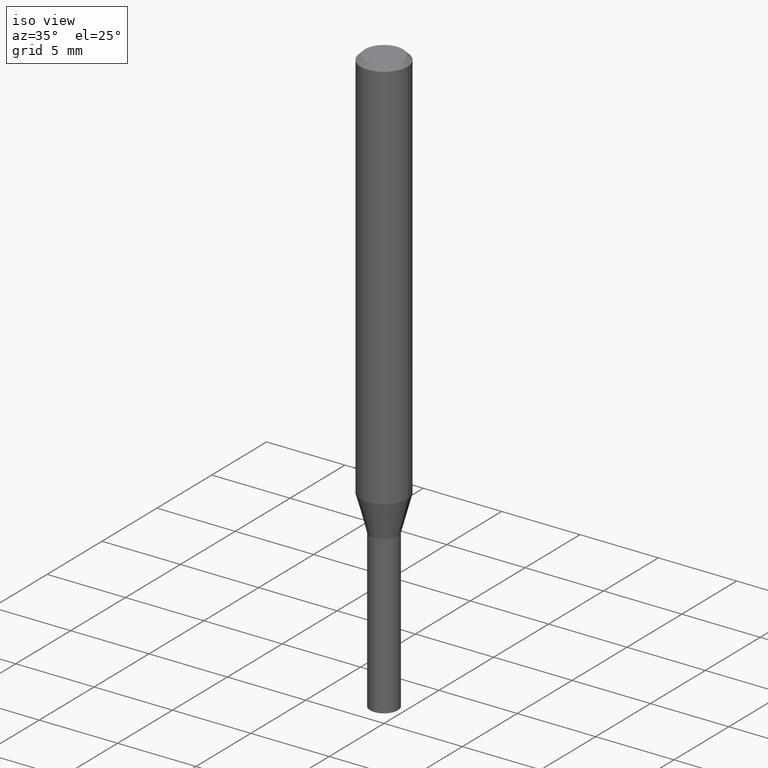
[diagram: clean part render]
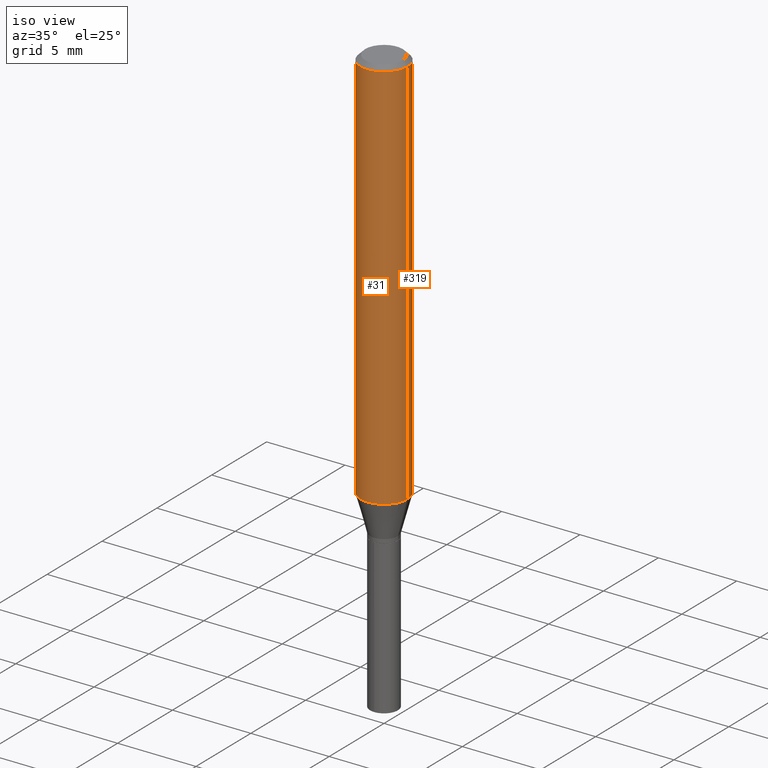
[diagram: same view with one multi-face feature highlighted, each face labeled with its STEP entity id]
A machine part, iso view. The highlighted faces form ONE feature: a constant-radius fillet chain: 2 tangent blend faces with common blend radius 1.4999 mm. The faces share edges in the B-rep.
Their STEP definitions:
[1] entity #31 (Cylinder):
#23 = DIRECTION ( 'NONE',  ( -2.445468806185136597E-29, 3.491481338843145583E-15, 1.000000000000000000 ) ) ;
#31 = ADVANCED_FACE ( 'NONE', ( #373 ), #297, .T. ) ;
#46 = CARTESIAN_POINT ( 'NONE',  ( 0.05905000000000006077, -4.123439461173744764E-16, 2.879382386107503023E-30 ) ) ;
#47 = VECTOR ( 'NONE', #242, 39.37007874015748143 ) ;
#50 = EDGE_CURVE ( 'NONE', #311, #342, #156, .T. ) ;
#53 = VERTEX_POINT ( 'NONE', #420 ) ;
#76 = DIRECTION ( 'NONE',  ( 1.000000000000000000, -6.982962677686266711E-15, 0.000000000000000000 ) ) ;
#89 = AXIS2_PLACEMENT_3D ( 'NONE', #255, #412, #76 ) ;
#97 = EDGE_CURVE ( 'NONE', #308, #342, #424, .T. ) ;
#105 = CARTESIAN_POINT ( 'NONE',  ( 0.05904999999999999832, -4.535783407291118600E-16, -0.01181000000000007218 ) ) ;
#119 = ORIENTED_EDGE ( 'NONE', *, *, #50, .T. ) ;
#126 = ORIENTED_EDGE ( 'NONE', *, *, #97, .F. ) ;
#156 = LINE ( 'NONE', #46, #187 ) ;
#158 = EDGE_CURVE ( 'NONE', #53, #308, #300, .T. ) ;
#178 = EDGE_LOOP ( 'NONE', ( #475, #334, #119, #126 ) ) ;
#187 = VECTOR ( 'NONE', #462, 39.37007874015748143 ) ;
#199 = DIRECTION ( 'NONE',  ( 1.000000000000000000, -6.982962677686266711E-15, 4.876176775795935793E-29 ) ) ;
#242 = DIRECTION ( 'NONE',  ( -2.445468806185136877E-29, 3.491481338843145188E-15, 1.000000000000000000 ) ) ;
#255 = CARTESIAN_POINT ( 'NONE',  ( 2.430024131145899834E-29, -3.469430436150130776E-15, -0.9936843704568328883 ) ) ;
#269 = DIRECTION ( 'NONE',  ( 1.000000000000000000, -6.982962677686266711E-15, 0.000000000000000000 ) ) ;
#274 = CARTESIAN_POINT ( 'NONE',  ( -0.05904999999999999832, -1.335756929914593970E-15, -0.01181000000000007218 ) ) ;
#284 = CIRCLE ( 'NONE', #89, 0.05905000000000011628 ) ;
#297 = CYLINDRICAL_SURFACE ( 'NONE', #398, 0.05905000000000006077 ) ;
#298 = CARTESIAN_POINT ( 'NONE',  ( 2.888098660104664204E-31, -4.123439461173780263E-17, -0.01181000000000007218 ) ) ;
#300 = LINE ( 'NONE', #480, #47 ) ;
#308 = VERTEX_POINT ( 'NONE', #274 ) ;
#311 = VERTEX_POINT ( 'NONE', #352 ) ;
#334 = ORIENTED_EDGE ( 'NONE', *, *, #410, .T. ) ;
#342 = VERTEX_POINT ( 'NONE', #105 ) ;
#352 = CARTESIAN_POINT ( 'NONE',  ( 0.05905000000000011628, -3.881774382267505696E-15, -0.9936843704568328883 ) ) ;
#363 = AXIS2_PLACEMENT_3D ( 'NONE', #298, #23, #269 ) ;
#373 = FACE_OUTER_BOUND ( 'NONE', #178, .T. ) ;
#398 = AXIS2_PLACEMENT_3D ( 'NONE', #467, #460, #199 ) ;
#410 = EDGE_CURVE ( 'NONE', #53, #311, #284, .T. ) ;
#412 = DIRECTION ( 'NONE',  ( -2.445468806185136597E-29, 3.491481338843145583E-15, 1.000000000000000000 ) ) ;
#420 = CARTESIAN_POINT ( 'NONE',  ( -0.05905000000000011628, -3.049854950683790888E-15, -0.9936843704568328883 ) ) ;
#424 = CIRCLE ( 'NONE', #363, 0.05904999999999999832 ) ;
#460 = DIRECTION ( 'NONE',  ( -2.445468806185136597E-29, 3.491481338843145583E-15, 1.000000000000000000 ) ) ;
#462 = DIRECTION ( 'NONE',  ( -2.445468806185136877E-29, 3.491481338843145188E-15, 1.000000000000000000 ) ) ;
#467 = CARTESIAN_POINT ( 'NONE',  ( 0.000000000000000000, 0.000000000000000000, 0.000000000000000000 ) ) ;
#475 = ORIENTED_EDGE ( 'NONE', *, *, #158, .F. ) ;
#480 = CARTESIAN_POINT ( 'NONE',  ( -0.05905000000000006077, 4.195754854663395916E-16, -2.904631170795524694E-30 ) ) ;
[2] entity #319 (Cylinder):
#46 = CARTESIAN_POINT ( 'NONE',  ( 0.05905000000000006077, -4.123439461173744764E-16, 2.879382386107503023E-30 ) ) ;
#47 = VECTOR ( 'NONE', #242, 39.37007874015748143 ) ;
#50 = EDGE_CURVE ( 'NONE', #311, #342, #156, .T. ) ;
#53 = VERTEX_POINT ( 'NONE', #420 ) ;
#55 = CIRCLE ( 'NONE', #127, 0.05904999999999999832 ) ;
#100 = CYLINDRICAL_SURFACE ( 'NONE', #346, 0.05905000000000006077 ) ;
#105 = CARTESIAN_POINT ( 'NONE',  ( 0.05904999999999999832, -4.535783407291118600E-16, -0.01181000000000007218 ) ) ;
#120 = CIRCLE ( 'NONE', #463, 0.05905000000000011628 ) ;
#125 = ORIENTED_EDGE ( 'NONE', *, *, #158, .T. ) ;
#127 = AXIS2_PLACEMENT_3D ( 'NONE', #135, #469, #170 ) ;
#135 = CARTESIAN_POINT ( 'NONE',  ( 2.888098660104664204E-31, -4.123439461173780263E-17, -0.01181000000000007218 ) ) ;
#140 = EDGE_CURVE ( 'NONE', #342, #308, #55, .T. ) ;
#143 = DIRECTION ( 'NONE',  ( -2.445468806185136597E-29, 3.491481338843145583E-15, 1.000000000000000000 ) ) ;
#156 = LINE ( 'NONE', #46, #187 ) ;
#158 = EDGE_CURVE ( 'NONE', #53, #308, #300, .T. ) ;
#170 = DIRECTION ( 'NONE',  ( 1.000000000000000000, -6.982962677686266711E-15, 0.000000000000000000 ) ) ;
#179 = FACE_OUTER_BOUND ( 'NONE', #231, .T. ) ;
#187 = VECTOR ( 'NONE', #462, 39.37007874015748143 ) ;
#231 = EDGE_LOOP ( 'NONE', ( #385, #125, #258, #350 ) ) ;
#237 = EDGE_CURVE ( 'NONE', #311, #53, #120, .T. ) ;
#242 = DIRECTION ( 'NONE',  ( -2.445468806185136877E-29, 3.491481338843145188E-15, 1.000000000000000000 ) ) ;
#251 = DIRECTION ( 'NONE',  ( 1.000000000000000000, -6.982962677686266711E-15, 4.876176775795935793E-29 ) ) ;
#258 = ORIENTED_EDGE ( 'NONE', *, *, #140, .F. ) ;
#274 = CARTESIAN_POINT ( 'NONE',  ( -0.05904999999999999832, -1.335756929914593970E-15, -0.01181000000000007218 ) ) ;
#286 = DIRECTION ( 'NONE',  ( -2.445468806185136597E-29, 3.491481338843145583E-15, 1.000000000000000000 ) ) ;
#300 = LINE ( 'NONE', #480, #47 ) ;
#308 = VERTEX_POINT ( 'NONE', #274 ) ;
#311 = VERTEX_POINT ( 'NONE', #352 ) ;
#315 = DIRECTION ( 'NONE',  ( 1.000000000000000000, -6.982962677686266711E-15, 0.000000000000000000 ) ) ;
#319 = ADVANCED_FACE ( 'NONE', ( #179 ), #100, .T. ) ;
#342 = VERTEX_POINT ( 'NONE', #105 ) ;
#346 = AXIS2_PLACEMENT_3D ( 'NONE', #449, #143, #251 ) ;
#350 = ORIENTED_EDGE ( 'NONE', *, *, #50, .F. ) ;
#352 = CARTESIAN_POINT ( 'NONE',  ( 0.05905000000000011628, -3.881774382267505696E-15, -0.9936843704568328883 ) ) ;
#385 = ORIENTED_EDGE ( 'NONE', *, *, #237, .T. ) ;
#420 = CARTESIAN_POINT ( 'NONE',  ( -0.05905000000000011628, -3.049854950683790888E-15, -0.9936843704568328883 ) ) ;
#425 = CARTESIAN_POINT ( 'NONE',  ( 2.430024131145899834E-29, -3.469430436150130776E-15, -0.9936843704568328883 ) ) ;
#449 = CARTESIAN_POINT ( 'NONE',  ( 0.000000000000000000, 0.000000000000000000, 0.000000000000000000 ) ) ;
#462 = DIRECTION ( 'NONE',  ( -2.445468806185136877E-29, 3.491481338843145188E-15, 1.000000000000000000 ) ) ;
#463 = AXIS2_PLACEMENT_3D ( 'NONE', #425, #286, #315 ) ;
#469 = DIRECTION ( 'NONE',  ( -2.445468806185136597E-29, 3.491481338843145583E-15, 1.000000000000000000 ) ) ;
#480 = CARTESIAN_POINT ( 'NONE',  ( -0.05905000000000006077, 4.195754854663395916E-16, -2.904631170795524694E-30 ) ) ;